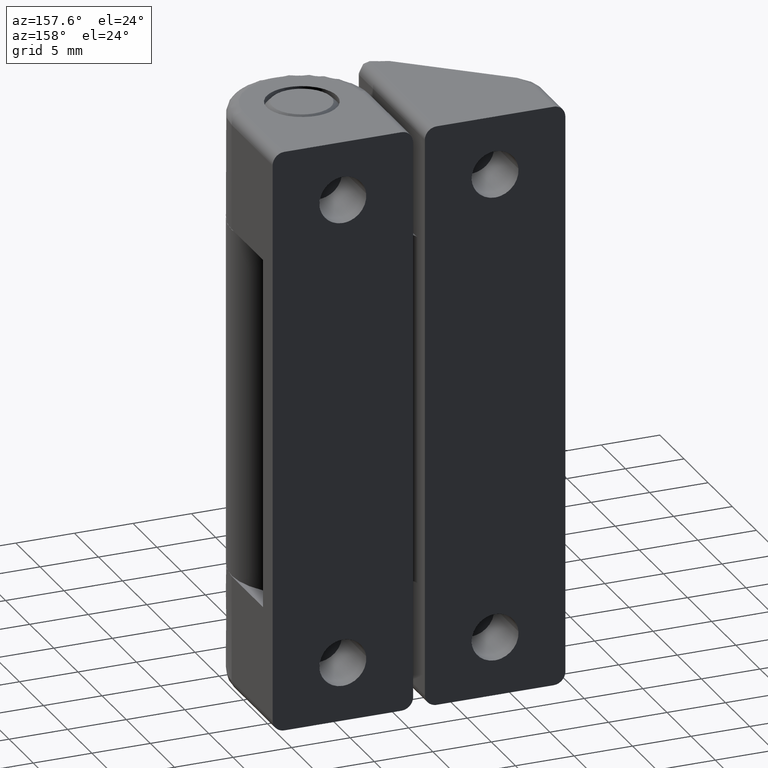
[diagram: clean part render]
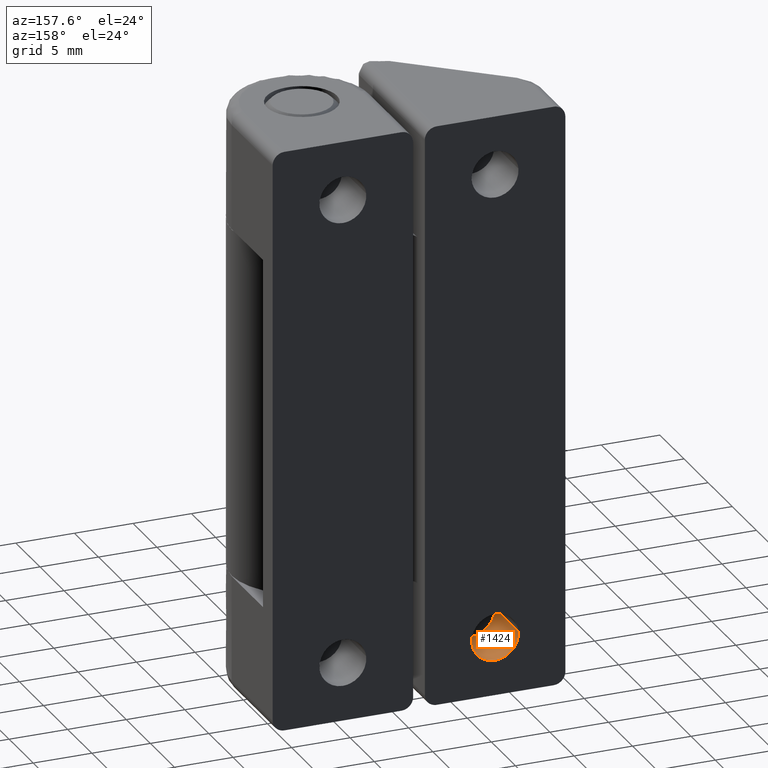
[diagram: same view with one face highlighted and labeled with its STEP entity id]
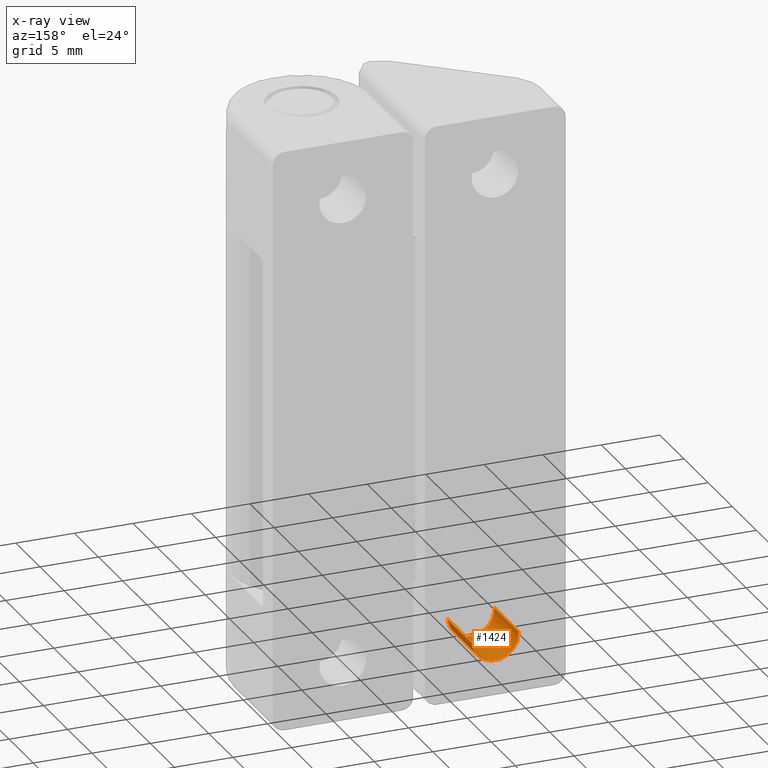
[diagram: x-ray of the same camera — body ghosted, the highlighted face saturated]
A machine part, auxiliary view. The second image highlights one B-rep face of the part: STEP entity #1424.
The next image is the same camera in x-ray: the body ghosted, the highlighted face saturated — about 0% of this face is hidden behind the body in this view.
In plain terms, the highlighted face is a freeform B-spline surface patch.
Its self-contained STEP definition (entity closure, byte-faithful):
#1263=CARTESIAN_POINT('',(-14.993834667465251,3.499999999999950,5.156918191468597));
#1264=VERTEX_POINT('',#1263);
#1278=CARTESIAN_POINT('',(-14.993834667465251,8.500000000000000,5.156918191468597));
#1279=VERTEX_POINT('',#1278);
#1280=CARTESIAN_POINT('',(-14.993834667465251,3.499999999999950,5.156918191468597));
#1281=CARTESIAN_POINT('',(-14.993834667465251,8.500000000000000,5.156918191468597));
#1282=QUASI_UNIFORM_CURVE('',1,(#1280,#1281),.UNSPECIFIED.,.F.,.U.);
#1283=EDGE_CURVE('',#1264,#1279,#1282,.T.);
#1300=CARTESIAN_POINT('',(-11.006165332534749,8.500000000000000,4.843081808531602));
#1301=VERTEX_POINT('',#1300);
#1317=CARTESIAN_POINT('',(-11.006165332534749,3.499999999999950,4.843081808531604));
#1318=VERTEX_POINT('',#1317);
#1319=CARTESIAN_POINT('',(-11.006165332534749,3.499999999999950,4.843081808531604));
#1320=CARTESIAN_POINT('',(-11.006165332534749,8.500000000000000,4.843081808531602));
#1321=QUASI_UNIFORM_CURVE('',1,(#1319,#1320),.UNSPECIFIED.,.F.,.U.);
#1322=EDGE_CURVE('',#1318,#1301,#1321,.T.);
#1342=CARTESIAN_POINT('',(-11.006165332533740,3.374999999999948,4.843081808544408));
#1343=CARTESIAN_POINT('',(-11.163083523989435,3.374999999999948,2.849247141078153));
#1344=CARTESIAN_POINT('',(-13.156918191455690,3.374999999999948,3.006165332533844));
#1345=CARTESIAN_POINT('',(-15.150752858921946,3.374999999999948,3.163083523989535));
#1346=CARTESIAN_POINT('',(-14.993834667466260,3.374999999999948,5.156918191455791));
#1347=CARTESIAN_POINT('',(-11.006165332533740,8.628125000000004,4.843081808544408));
#1348=CARTESIAN_POINT('',(-11.163083523989435,8.628125000000004,2.849247141078153));
#1349=CARTESIAN_POINT('',(-13.156918191455690,8.628125000000004,3.006165332533844));
#1350=CARTESIAN_POINT('',(-15.150752858921946,8.628125000000004,3.163083523989535));
#1351=CARTESIAN_POINT('',(-14.993834667466260,8.628125000000004,5.156918191455791));
#1359=(BOUNDED_SURFACE()B_SPLINE_SURFACE(2,1,((#1342,#1347),(#1343,#1348),(#1344,#1349),(#1345,#1350),(#1346,#1351)),.UNSPECIFIED.,.F.,.F.,.U.)B_SPLINE_SURFACE_WITH_KNOTS((3,2,3),(2,2),(0.0,3.313708498984761,6.627416997969522),(0.0,5.253125000000057),.UNSPECIFIED.)GEOMETRIC_REPRESENTATION_ITEM()RATIONAL_B_SPLINE_SURFACE(((1.0,1.0),(0.707106781186548,0.707106781186548),(1.0,1.0),(0.707106781186548,0.707106781186548),(1.0,1.0)))REPRESENTATION_ITEM('')SURFACE());
#1360=CARTESIAN_POINT('',(-13.0,3.499999999999950,3.000000000000100));
#1361=VERTEX_POINT('',#1360);
#1362=CARTESIAN_POINT('',(-14.993834667465254,3.499999999999950,5.156918191468597));
#1363=CARTESIAN_POINT('',(-15.000000000000007,3.499999999999950,5.078580214028305));
#1364=CARTESIAN_POINT('',(-15.0,3.499999999999950,5.000000000000100));
#1365=CARTESIAN_POINT('',(-14.999999999999995,3.499999999999949,3.000000000000100));
#1366=CARTESIAN_POINT('',(-13.0,3.499999999999950,3.000000000000100));
#1374=(BOUNDED_CURVE()B_SPLINE_CURVE(2,(#1362,#1363,#1364,#1365,#1366),.UNSPECIFIED.,.F.,.U.)B_SPLINE_CURVE_WITH_KNOTS((3,2,3),(0.236331300630565,0.250000000000000,0.500000000000000),.UNSPECIFIED.)CURVE()GEOMETRIC_REPRESENTATION_ITEM()RATIONAL_B_SPLINE_CURVE((0.969723356167220,0.983986122578771,1.0,0.707106781186548,1.0))REPRESENTATION_ITEM(''));
#1375=EDGE_CURVE('',#1264,#1361,#1374,.T.);
#1376=ORIENTED_EDGE('',*,*,#1375,.T.);
#1377=CARTESIAN_POINT('',(-13.0,3.499999999999950,3.000000000000100));
#1378=CARTESIAN_POINT('',(-11.151219016707399,3.499999999999950,3.000000000000099));
#1379=CARTESIAN_POINT('',(-11.006165332534758,3.499999999999950,4.843081808531604));
#1387=(BOUNDED_CURVE()B_SPLINE_CURVE(2,(#1377,#1378,#1379),.UNSPECIFIED.,.F.,.U.)B_SPLINE_CURVE_WITH_KNOTS((3,3),(0.500000000000000,0.736331300630566),.UNSPECIFIED.)CURVE()GEOMETRIC_REPRESENTATION_ITEM()RATIONAL_B_SPLINE_CURVE((1.0,0.723120658607776,0.969723356167222))REPRESENTATION_ITEM(''));
#1388=EDGE_CURVE('',#1361,#1318,#1387,.T.);
#1389=ORIENTED_EDGE('',*,*,#1388,.T.);
#1390=ORIENTED_EDGE('',*,*,#1322,.T.);
#1391=CARTESIAN_POINT('',(-13.0,8.500000000000000,3.000000000000100));
#1392=VERTEX_POINT('',#1391);
#1393=CARTESIAN_POINT('',(-13.0,8.500000000000000,3.000000000000100));
#1394=CARTESIAN_POINT('',(-11.151219016707399,8.500000000000000,3.000000000000099));
#1395=CARTESIAN_POINT('',(-11.006165332534747,8.500000000000000,4.843081808531602));
#1403=(BOUNDED_CURVE()B_SPLINE_CURVE(2,(#1393,#1394,#1395),.UNSPECIFIED.,.F.,.U.)B_SPLINE_CURVE_WITH_KNOTS((3,3),(0.500000000000000,0.736331300630566),.UNSPECIFIED.)CURVE()GEOMETRIC_REPRESENTATION_ITEM()RATIONAL_B_SPLINE_CURVE((1.0,0.723120658607776,0.969723356167222))REPRESENTATION_ITEM(''));
#1404=EDGE_CURVE('',#1392,#1301,#1403,.T.);
#1405=ORIENTED_EDGE('',*,*,#1404,.F.);
#1406=CARTESIAN_POINT('',(-14.993834667465254,8.500000000000000,5.156918191468597));
#1407=CARTESIAN_POINT('',(-15.000000000000007,8.500000000000000,5.078580214028305));
#1408=CARTESIAN_POINT('',(-15.0,8.500000000000000,5.000000000000100));
#1409=CARTESIAN_POINT('',(-14.999999999999995,8.500000000000002,3.000000000000100));
#1410=CARTESIAN_POINT('',(-13.0,8.500000000000000,3.000000000000100));
#1418=(BOUNDED_CURVE()B_SPLINE_CURVE(2,(#1406,#1407,#1408,#1409,#1410),.UNSPECIFIED.,.F.,.U.)B_SPLINE_CURVE_WITH_KNOTS((3,2,3),(0.236331300630565,0.250000000000000,0.500000000000000),.UNSPECIFIED.)CURVE()GEOMETRIC_REPRESENTATION_ITEM()RATIONAL_B_SPLINE_CURVE((0.969723356167220,0.983986122578771,1.0,0.707106781186548,1.0))REPRESENTATION_ITEM(''));
#1419=EDGE_CURVE('',#1279,#1392,#1418,.T.);
#1420=ORIENTED_EDGE('',*,*,#1419,.F.);
#1421=ORIENTED_EDGE('',*,*,#1283,.F.);
#1422=EDGE_LOOP('',(#1376,#1389,#1390,#1405,#1420,#1421));
#1423=FACE_OUTER_BOUND('',#1422,.T.);
#1424=ADVANCED_FACE('',(#1423),#1359,.F.);